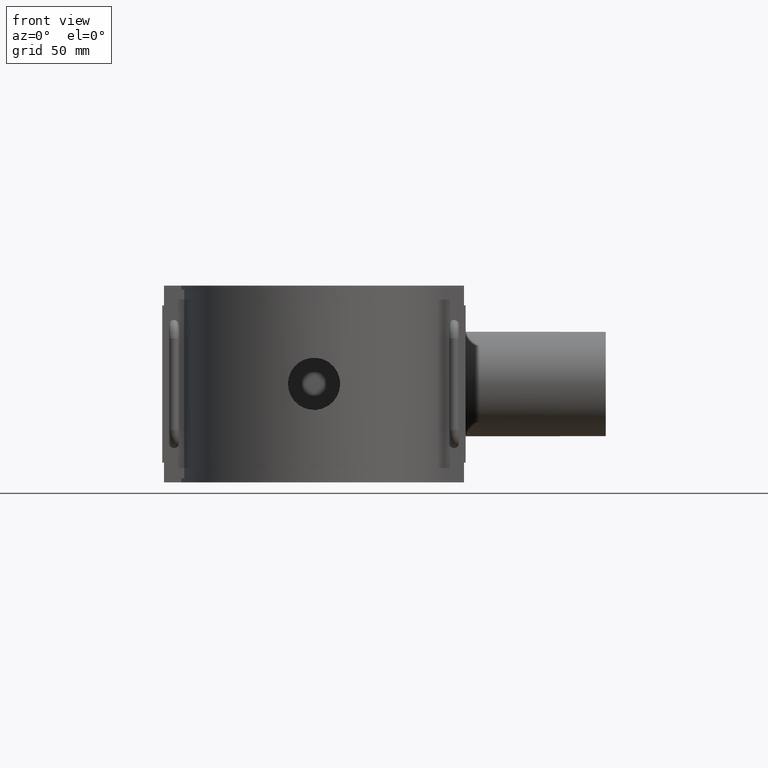
[diagram: clean part render]
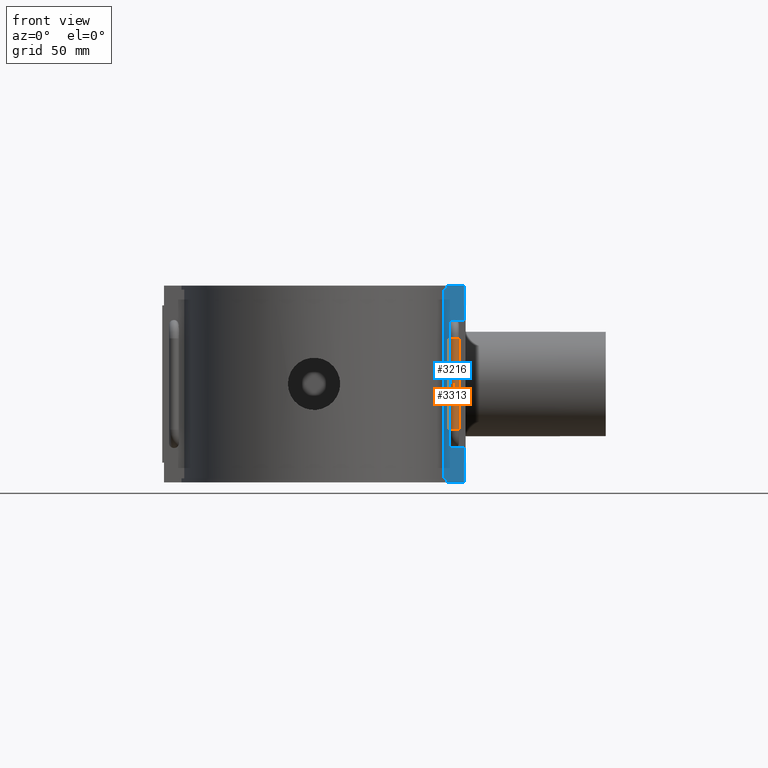
[diagram: same view with the hole feature highlighted: cylindrical wall and planar end face, labeled with their STEP entity ids]
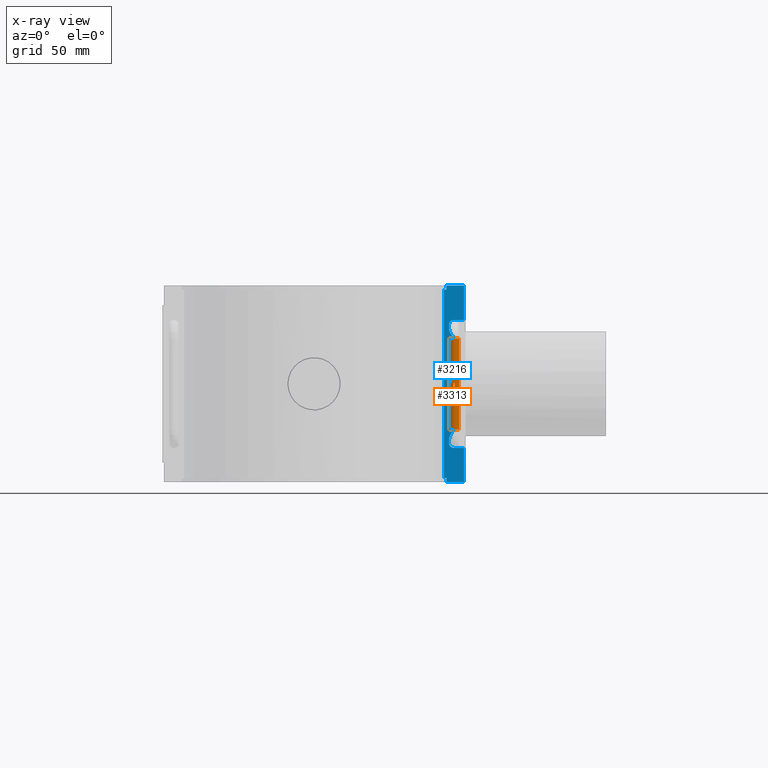
[diagram: x-ray of the same camera — body ghosted, the hole faces saturated]
A machine part, front view. The highlighted faces form one hole feature of diameter 6 mm: the cylindrical wall (entity #3313, orange) and its adjacent planar end face (entity #3216, blue) — they share a circular edge in the B-rep.
The next image is the same camera in x-ray (body ghosted, the hole faces saturated) — the bore reads through the body.
Wall:
#147=LINE('',#5809,#434);
#434=VECTOR('',#4013,54.7999999999999);
#769=CYLINDRICAL_SURFACE('',#3610,3.);
#941=FACE_OUTER_BOUND('',#1185,.T.);
#1185=EDGE_LOOP('',(#2870,#2871,#2872,#2873));
#1314=CIRCLE('',#3599,3.);
#1319=CIRCLE('',#3605,3.);
#1471=VERTEX_POINT('',#5795);
#1472=VERTEX_POINT('',#5808);
#1832=EDGE_CURVE('',#1472,#1471,#147,.T.);
#2032=EDGE_CURVE('',#1471,#1471,#1314,.T.);
#2043=EDGE_CURVE('',#1472,#1472,#1319,.T.);
#2870=ORIENTED_EDGE('',*,*,#2043,.T.);
#2871=ORIENTED_EDGE('',*,*,#1832,.T.);
#2872=ORIENTED_EDGE('',*,*,#2032,.F.);
#2873=ORIENTED_EDGE('',*,*,#1832,.F.);
#3313=ADVANCED_FACE('',(#941),#769,.T.);
#3599=AXIS2_PLACEMENT_3D('',#6550,#4409,#4410);
#3605=AXIS2_PLACEMENT_3D('',#6635,#4421,#4422);
#3610=AXIS2_PLACEMENT_3D('',#6671,#4435,#4436);
#4013=DIRECTION('',(0.,0.,-1.));
#4409=DIRECTION('center_axis',(0.,-6.12323399573677E-17,-1.));
#4410=DIRECTION('ref_axis',(-1.,0.,0.));
#4421=DIRECTION('center_axis',(0.,-6.12323399573677E-17,-1.));
#4422=DIRECTION('ref_axis',(-1.,0.,0.));
#4435=DIRECTION('center_axis',(0.,0.,-1.));
#4436=DIRECTION('ref_axis',(-1.,0.,0.));
#5795=CARTESIAN_POINT('',(84.,-17.5,-27.4));
#5808=CARTESIAN_POINT('',(84.,-17.5,27.3999999999999));
#5809=CARTESIAN_POINT('',(84.,-17.5,27.3999999999999));
#6550=CARTESIAN_POINT('Origin',(84.,-20.4999999999995,-27.4));
#6635=CARTESIAN_POINT('Origin',(84.,-20.4999999999995,27.3999999999999));
#6671=CARTESIAN_POINT('Origin',(84.,-20.4999999999995,27.3999999999999));
End face:
#108=LINE('',#5550,#395);
#111=LINE('',#5558,#398);
#130=LINE('',#5638,#417);
#131=LINE('',#5642,#418);
#144=LINE('',#5788,#431);
#145=LINE('',#5790,#432);
#146=LINE('',#5792,#433);
#147=LINE('',#5809,#434);
#148=LINE('',#5826,#435);
#149=LINE('',#5828,#436);
#150=LINE('',#5829,#437);
#151=LINE('',#5830,#438);
#395=VECTOR('',#3924,2.36);
#398=VECTOR('',#3931,1.63500989043721);
#417=VECTOR('',#3976,2.36);
#418=VECTOR('',#3981,1.63500989043721);
#431=VECTOR('',#4008,10.5074920762969);
#432=VECTOR('',#4009,20.6);
#433=VECTOR('',#4010,6.02433467297777);
#434=VECTOR('',#4013,54.7999999999999);
#435=VECTOR('',#4016,6.02433467297777);
#436=VECTOR('',#4017,20.6);
#437=VECTOR('',#4018,10.5074920762969);
#438=VECTOR('',#4019,113.28);
#696=B_SPLINE_CURVE_WITH_KNOTS('',3,(#5796,#5797,#5798,#5799,#5800,#5801,
#5802,#5803,#5804,#5805,#5806,#5807),.UNSPECIFIED.,.F.,.F.,(4,2,2,2,2,4),
(1.55418267469212,1.6414383672911,1.76844964601289,1.89546092473468,2.10094201058331,
2.30642309643195),.UNSPECIFIED.);
#697=B_SPLINE_CURVE_WITH_KNOTS('',3,(#5811,#5812,#5813,#5814,#5815,#5816,
#5817,#5818,#5819,#5820,#5821,#5822),.UNSPECIFIED.,.F.,.F.,(4,2,2,2,2,4),
(0.,0.205481085848634,0.410962171697267,0.537973450419057,0.664984729140847,
0.752240421739833),.UNSPECIFIED.);
#844=FACE_OUTER_BOUND('',#1055,.T.);
#1055=EDGE_LOOP('',(#2421,#2422,#2423,#2424,#2425,#2426,#2427,#2428,#2429,
#2430,#2431,#2432,#2433,#2434,#2435,#2436));
#1274=CIRCLE('',#3470,3.);
#1275=CIRCLE('',#3471,3.);
#1418=VERTEX_POINT('',#5547);
#1419=VERTEX_POINT('',#5549);
#1422=VERTEX_POINT('',#5557);
#1445=VERTEX_POINT('',#5634);
#1446=VERTEX_POINT('',#5636);
#1447=VERTEX_POINT('',#5640);
#1467=VERTEX_POINT('',#5787);
#1468=VERTEX_POINT('',#5789);
#1469=VERTEX_POINT('',#5791);
#1470=VERTEX_POINT('',#5793);
#1471=VERTEX_POINT('',#5795);
#1472=VERTEX_POINT('',#5808);
#1473=VERTEX_POINT('',#5810);
#1474=VERTEX_POINT('',#5823);
#1475=VERTEX_POINT('',#5825);
#1476=VERTEX_POINT('',#5827);
#1769=EDGE_CURVE('',#1419,#1418,#108,.T.);
#1773=EDGE_CURVE('',#1422,#1419,#111,.T.);
#1802=EDGE_CURVE('',#1445,#1446,#130,.T.);
#1804=EDGE_CURVE('',#1446,#1447,#131,.T.);
#1827=EDGE_CURVE('',#1467,#1418,#144,.T.);
#1828=EDGE_CURVE('',#1467,#1468,#145,.T.);
#1829=EDGE_CURVE('',#1468,#1469,#146,.T.);
#1830=EDGE_CURVE('',#1469,#1470,#1274,.T.);
#1831=EDGE_CURVE('',#1470,#1471,#696,.T.);
#1832=EDGE_CURVE('',#1472,#1471,#147,.T.);
#1833=EDGE_CURVE('',#1472,#1473,#697,.T.);
#1834=EDGE_CURVE('',#1473,#1474,#1275,.T.);
#1835=EDGE_CURVE('',#1474,#1475,#148,.T.);
#1836=EDGE_CURVE('',#1475,#1476,#149,.T.);
#1837=EDGE_CURVE('',#1445,#1476,#150,.T.);
#1838=EDGE_CURVE('',#1422,#1447,#151,.T.);
#2421=ORIENTED_EDGE('',*,*,#1769,.T.);
#2422=ORIENTED_EDGE('',*,*,#1827,.F.);
#2423=ORIENTED_EDGE('',*,*,#1828,.T.);
#2424=ORIENTED_EDGE('',*,*,#1829,.T.);
#2425=ORIENTED_EDGE('',*,*,#1830,.T.);
#2426=ORIENTED_EDGE('',*,*,#1831,.T.);
#2427=ORIENTED_EDGE('',*,*,#1832,.F.);
#2428=ORIENTED_EDGE('',*,*,#1833,.T.);
#2429=ORIENTED_EDGE('',*,*,#1834,.T.);
#2430=ORIENTED_EDGE('',*,*,#1835,.T.);
#2431=ORIENTED_EDGE('',*,*,#1836,.T.);
#2432=ORIENTED_EDGE('',*,*,#1837,.F.);
#2433=ORIENTED_EDGE('',*,*,#1802,.T.);
#2434=ORIENTED_EDGE('',*,*,#1804,.T.);
#2435=ORIENTED_EDGE('',*,*,#1838,.F.);
#2436=ORIENTED_EDGE('',*,*,#1773,.T.);
#3065=PLANE('',#3469);
#3216=ADVANCED_FACE('',(#844),#3065,.T.);
#3469=AXIS2_PLACEMENT_3D('',#5786,#4006,#4007);
#3470=AXIS2_PLACEMENT_3D('',#5794,#4011,#4012);
#3471=AXIS2_PLACEMENT_3D('',#5824,#4014,#4015);
#3924=DIRECTION('',(0.,0.,-1.));
#3931=DIRECTION('',(1.,0.,0.));
#3976=DIRECTION('',(0.,0.,-1.));
#3981=DIRECTION('',(-1.,0.,0.));
#4006=DIRECTION('center_axis',(0.,-1.,0.));
#4007=DIRECTION('ref_axis',(1.,0.,0.));
#4008=DIRECTION('',(-1.,0.,0.));
#4009=DIRECTION('',(0.,0.,1.));
#4010=DIRECTION('',(-1.,0.,0.));
#4011=DIRECTION('center_axis',(0.,1.,0.));
#4012=DIRECTION('ref_axis',(1.,0.,0.));
#4013=DIRECTION('',(0.,0.,-1.));
#4014=DIRECTION('center_axis',(0.,1.,0.));
#4015=DIRECTION('ref_axis',(1.,0.,0.));
#4016=DIRECTION('',(1.,0.,-7.37158929503087E-16));
#4017=DIRECTION('',(0.,0.,1.));
#4018=DIRECTION('',(1.,0.,0.));
#4019=DIRECTION('',(0.,0.,1.));
#5547=CARTESIAN_POINT('',(79.4925079237031,-17.5,-59.));
#5549=CARTESIAN_POINT('',(79.4925079237031,-17.5,-56.64));
#5550=CARTESIAN_POINT('',(79.4925079237031,-17.5,-59.));
#5557=CARTESIAN_POINT('',(77.8574980332659,-17.5,-56.64));
#5558=CARTESIAN_POINT('',(38.9287490166329,-17.5,-56.64));
#5634=CARTESIAN_POINT('',(79.4925079237031,-17.5,59.));
#5636=CARTESIAN_POINT('',(79.4925079237031,-17.5,56.64));
#5638=CARTESIAN_POINT('',(79.4925079237031,-17.5,59.));
#5640=CARTESIAN_POINT('',(77.8574980332659,-17.5,56.64));
#5642=CARTESIAN_POINT('',(38.9287490166329,-17.5,56.64));
#5786=CARTESIAN_POINT('Origin',(77.8574980332659,-17.5,0.));
#5787=CARTESIAN_POINT('',(90.,-17.5,-59.));
#5788=CARTESIAN_POINT('',(77.8574980332659,-17.5,-59.));
#5789=CARTESIAN_POINT('',(90.,-17.5,-38.4));
#5790=CARTESIAN_POINT('',(90.,-17.5,0.));
#5791=CARTESIAN_POINT('',(83.9756653270222,-17.5,-38.4));
#5792=CARTESIAN_POINT('',(83.9287490166329,-17.5,-38.4));
#5793=CARTESIAN_POINT('',(81.092907556629,-17.5,-34.5695136140565));
#5794=CARTESIAN_POINT('Origin',(83.9756653270222,-17.5,-35.4));
#5795=CARTESIAN_POINT('',(84.,-17.5,-27.4));
#5796=CARTESIAN_POINT('Ctrl Pts',(81.092907556629,-17.5,-34.5695136140565));
#5797=CARTESIAN_POINT('Ctrl Pts',(81.0281744318221,-17.5,-34.2598177046231));
#5798=CARTESIAN_POINT('Ctrl Pts',(81.,-17.5,-33.9358503070613));
#5799=CARTESIAN_POINT('Ctrl Pts',(81.,-17.5,-33.2216270693254));
#5800=CARTESIAN_POINT('Ctrl Pts',(81.0580680938667,-17.5,-32.7627013613541));
#5801=CARTESIAN_POINT('Ctrl Pts',(81.2771836493012,-17.5,-31.8673367205852));
#5802=CARTESIAN_POINT('Ctrl Pts',(81.4370980571853,-17.5,-31.430620884329));
#5803=CARTESIAN_POINT('Ctrl Pts',(81.889168796984,-17.5,-30.4187027022101));
#5804=CARTESIAN_POINT('Ctrl Pts',(82.270333637417,-17.5,-29.7738388291262));
#5805=CARTESIAN_POINT('Ctrl Pts',(83.1179526808835,-17.5,-28.5365468681764));
#5806=CARTESIAN_POINT('Ctrl Pts',(83.5805634898982,-17.5,-27.9414902061386));
#5807=CARTESIAN_POINT('Ctrl Pts',(84.,-17.5,-27.4));
#5808=CARTESIAN_POINT('',(84.,-17.5,27.3999999999999));
#5809=CARTESIAN_POINT('',(84.,-17.5,27.3999999999999));
#5810=CARTESIAN_POINT('',(81.092907556629,-17.5,34.5695136140564));
#5811=CARTESIAN_POINT('Ctrl Pts',(84.,-17.5,27.3999999999999));
#5812=CARTESIAN_POINT('Ctrl Pts',(83.5805634898982,-17.5,27.9414902061385));
#5813=CARTESIAN_POINT('Ctrl Pts',(83.1179526808835,-17.5,28.5365468681763));
#5814=CARTESIAN_POINT('Ctrl Pts',(82.270333637417,-17.5,29.7738388291261));
#5815=CARTESIAN_POINT('Ctrl Pts',(81.889168796984,-17.5,30.41870270221));
#5816=CARTESIAN_POINT('Ctrl Pts',(81.4370980571853,-17.5,31.4306208843289));
#5817=CARTESIAN_POINT('Ctrl Pts',(81.2771836493012,-17.5,31.867336720585));
#5818=CARTESIAN_POINT('Ctrl Pts',(81.0580680938667,-17.5,32.762701361354));
#5819=CARTESIAN_POINT('Ctrl Pts',(81.,-17.5,33.2216270693253));
#5820=CARTESIAN_POINT('Ctrl Pts',(81.,-17.5,33.9358503070612));
#5821=CARTESIAN_POINT('Ctrl Pts',(81.0281744318221,-17.5,34.259817704623));
#5822=CARTESIAN_POINT('Ctrl Pts',(81.092907556629,-17.5,34.5695136140564));
#5823=CARTESIAN_POINT('',(83.9756653270222,-17.5,38.4));
#5824=CARTESIAN_POINT('Origin',(83.9756653270222,-17.5,35.4));
#5825=CARTESIAN_POINT('',(90.,-17.5,38.4));
#5826=CARTESIAN_POINT('',(80.9165816801441,-17.5,38.4));
#5827=CARTESIAN_POINT('',(90.,-17.5,59.));
#5828=CARTESIAN_POINT('',(90.,-17.5,0.));
#5829=CARTESIAN_POINT('',(77.8574980332659,-17.5,59.));
#5830=CARTESIAN_POINT('',(77.8574980332659,-17.5,0.));